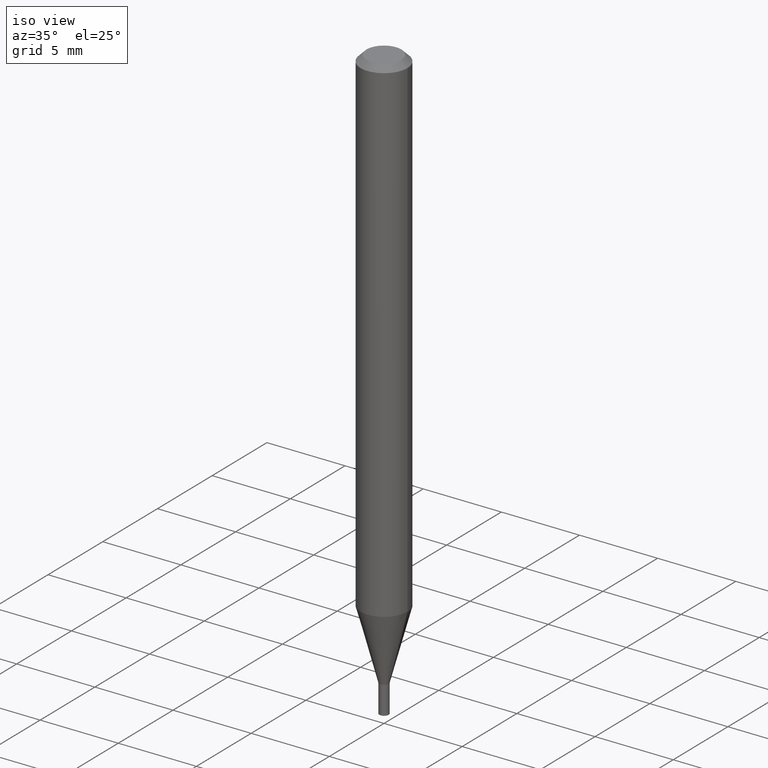
[diagram: clean part render]
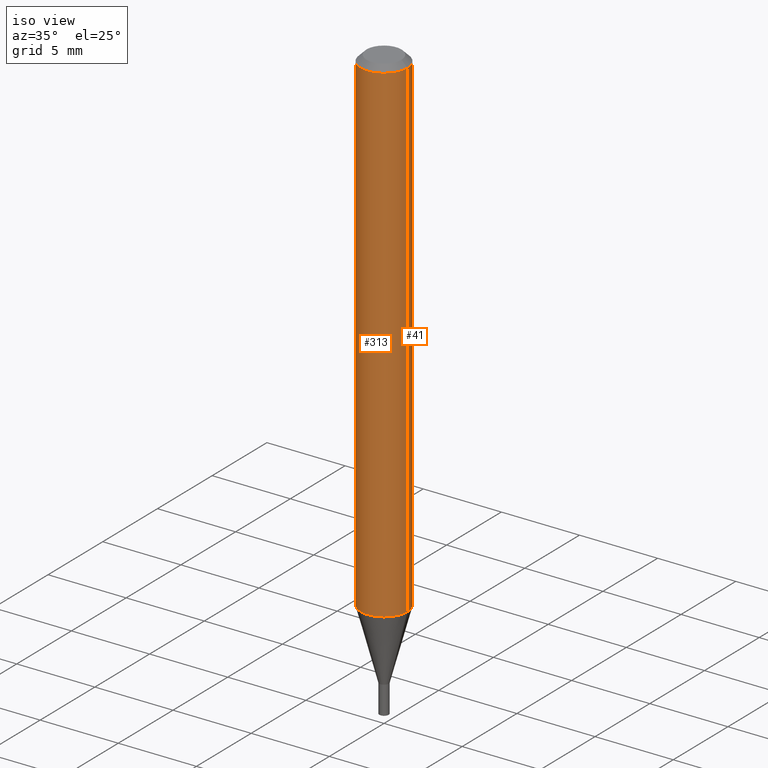
[diagram: same view with one multi-face feature highlighted, each face labeled with its STEP entity id]
A machine part, iso view. The highlighted faces form ONE feature: a constant-radius fillet chain: 2 tangent blend faces with common blend radius 1.4999 mm. The faces share edges in the B-rep.
Their STEP definitions:
[1] entity #41 (Cylinder):
#1 = DIRECTION ( 'NONE',  ( -2.445468806185136877E-29, 3.491481338843145188E-15, 1.000000000000000000 ) ) ;
#19 = DIRECTION ( 'NONE',  ( -2.445468806185136877E-29, 3.491481338843145188E-15, 1.000000000000000000 ) ) ;
#41 = ADVANCED_FACE ( 'NONE', ( #323 ), #452, .T. ) ;
#49 = CARTESIAN_POINT ( 'NONE',  ( -0.05904999999999999832, 4.195754854663391478E-16, -2.904631170795521892E-30 ) ) ;
#55 = CARTESIAN_POINT ( 'NONE',  ( 0.05904999999999999832, -4.123439461173740327E-16, 2.879382386107500220E-30 ) ) ;
#73 = EDGE_CURVE ( 'NONE', #176, #307, #445, .T. ) ;
#98 = LINE ( 'NONE', #55, #165 ) ;
#117 = VERTEX_POINT ( 'NONE', #207 ) ;
#121 = ORIENTED_EDGE ( 'NONE', *, *, #374, .F. ) ;
#122 = ORIENTED_EDGE ( 'NONE', *, *, #211, .T. ) ;
#141 = ORIENTED_EDGE ( 'NONE', *, *, #73, .T. ) ;
#150 = CARTESIAN_POINT ( 'NONE',  ( 0.000000000000000000, 0.000000000000000000, 0.000000000000000000 ) ) ;
#165 = VECTOR ( 'NONE', #19, 39.37007874015748143 ) ;
#168 = EDGE_CURVE ( 'NONE', #176, #187, #98, .T. ) ;
#175 = CARTESIAN_POINT ( 'NONE',  ( 0.05904999999999999832, -4.786334200759217729E-15, -1.252760599342370940 ) ) ;
#176 = VERTEX_POINT ( 'NONE', #175 ) ;
#185 = CIRCLE ( 'NONE', #335, 0.05904999999999999832 ) ;
#187 = VERTEX_POINT ( 'NONE', #311 ) ;
#207 = CARTESIAN_POINT ( 'NONE',  ( -0.05904999999999999832, -1.793605751895906043E-15, -0.01499999999999999944 ) ) ;
#211 = EDGE_CURVE ( 'NONE', #307, #117, #364, .T. ) ;
#216 = CARTESIAN_POINT ( 'NONE',  ( 3.063586967309564449E-29, -4.373990254641843598E-15, -1.252760599342370940 ) ) ;
#254 = ORIENTED_EDGE ( 'NONE', *, *, #168, .F. ) ;
#277 = AXIS2_PLACEMENT_3D ( 'NONE', #150, #428, #397 ) ;
#307 = VERTEX_POINT ( 'NONE', #372 ) ;
#311 = CARTESIAN_POINT ( 'NONE',  ( 0.05904999999999999832, -4.647161662000212105E-16, -0.01499999999999999944 ) ) ;
#323 = FACE_OUTER_BOUND ( 'NONE', #365, .T. ) ;
#330 = VECTOR ( 'NONE', #1, 39.37007874015748143 ) ;
#335 = AXIS2_PLACEMENT_3D ( 'NONE', #396, #449, #386 ) ;
#351 = DIRECTION ( 'NONE',  ( -2.445468806185136597E-29, 3.491481338843145583E-15, 1.000000000000000000 ) ) ;
#364 = LINE ( 'NONE', #49, #330 ) ;
#365 = EDGE_LOOP ( 'NONE', ( #141, #122, #121, #254 ) ) ;
#367 = DIRECTION ( 'NONE',  ( 1.000000000000000000, -6.982962677686273021E-15, 0.000000000000000000 ) ) ;
#372 = CARTESIAN_POINT ( 'NONE',  ( -0.05904999999999999832, -3.954414769175504894E-15, -1.252760599342370940 ) ) ;
#374 = EDGE_CURVE ( 'NONE', #187, #117, #185, .T. ) ;
#386 = DIRECTION ( 'NONE',  ( 1.000000000000000000, -6.982962677686266711E-15, 0.000000000000000000 ) ) ;
#396 = CARTESIAN_POINT ( 'NONE',  ( 3.668203209277705088E-31, -5.237222008264718399E-17, -0.01499999999999999944 ) ) ;
#397 = DIRECTION ( 'NONE',  ( 1.000000000000000000, -6.982962677686266711E-15, 4.876176775795936353E-29 ) ) ;
#428 = DIRECTION ( 'NONE',  ( -2.445468806185136597E-29, 3.491481338843145583E-15, 1.000000000000000000 ) ) ;
#445 = CIRCLE ( 'NONE', #464, 0.05904999999999999832 ) ;
#449 = DIRECTION ( 'NONE',  ( -2.445468806185136597E-29, 3.491481338843145583E-15, 1.000000000000000000 ) ) ;
#452 = CYLINDRICAL_SURFACE ( 'NONE', #277, 0.05904999999999999832 ) ;
#464 = AXIS2_PLACEMENT_3D ( 'NONE', #216, #351, #367 ) ;
[2] entity #313 (Cylinder):
#1 = DIRECTION ( 'NONE',  ( -2.445468806185136877E-29, 3.491481338843145188E-15, 1.000000000000000000 ) ) ;
#19 = DIRECTION ( 'NONE',  ( -2.445468806185136877E-29, 3.491481338843145188E-15, 1.000000000000000000 ) ) ;
#34 = CIRCLE ( 'NONE', #304, 0.05904999999999999832 ) ;
#49 = CARTESIAN_POINT ( 'NONE',  ( -0.05904999999999999832, 4.195754854663391478E-16, -2.904631170795521892E-30 ) ) ;
#55 = CARTESIAN_POINT ( 'NONE',  ( 0.05904999999999999832, -4.123439461173740327E-16, 2.879382386107500220E-30 ) ) ;
#82 = AXIS2_PLACEMENT_3D ( 'NONE', #270, #411, #97 ) ;
#84 = DIRECTION ( 'NONE',  ( -2.445468806185136597E-29, 3.491481338843145583E-15, 1.000000000000000000 ) ) ;
#93 = ORIENTED_EDGE ( 'NONE', *, *, #324, .T. ) ;
#97 = DIRECTION ( 'NONE',  ( 1.000000000000000000, -6.982962677686266711E-15, 0.000000000000000000 ) ) ;
#98 = LINE ( 'NONE', #55, #165 ) ;
#117 = VERTEX_POINT ( 'NONE', #207 ) ;
#123 = FACE_OUTER_BOUND ( 'NONE', #399, .T. ) ;
#128 = DIRECTION ( 'NONE',  ( 1.000000000000000000, -6.982962677686266711E-15, 4.876176775795936353E-29 ) ) ;
#165 = VECTOR ( 'NONE', #19, 39.37007874015748143 ) ;
#168 = EDGE_CURVE ( 'NONE', #176, #187, #98, .T. ) ;
#175 = CARTESIAN_POINT ( 'NONE',  ( 0.05904999999999999832, -4.786334200759217729E-15, -1.252760599342370940 ) ) ;
#176 = VERTEX_POINT ( 'NONE', #175 ) ;
#187 = VERTEX_POINT ( 'NONE', #311 ) ;
#197 = CYLINDRICAL_SURFACE ( 'NONE', #212, 0.05904999999999999832 ) ;
#204 = CIRCLE ( 'NONE', #82, 0.05904999999999999832 ) ;
#207 = CARTESIAN_POINT ( 'NONE',  ( -0.05904999999999999832, -1.793605751895906043E-15, -0.01499999999999999944 ) ) ;
#211 = EDGE_CURVE ( 'NONE', #307, #117, #364, .T. ) ;
#212 = AXIS2_PLACEMENT_3D ( 'NONE', #336, #84, #128 ) ;
#219 = EDGE_CURVE ( 'NONE', #117, #187, #204, .T. ) ;
#251 = ORIENTED_EDGE ( 'NONE', *, *, #211, .F. ) ;
#270 = CARTESIAN_POINT ( 'NONE',  ( 3.668203209277705088E-31, -5.237222008264718399E-17, -0.01499999999999999944 ) ) ;
#295 = DIRECTION ( 'NONE',  ( 1.000000000000000000, -6.982962677686273021E-15, 0.000000000000000000 ) ) ;
#304 = AXIS2_PLACEMENT_3D ( 'NONE', #331, #466, #295 ) ;
#307 = VERTEX_POINT ( 'NONE', #372 ) ;
#311 = CARTESIAN_POINT ( 'NONE',  ( 0.05904999999999999832, -4.647161662000212105E-16, -0.01499999999999999944 ) ) ;
#313 = ADVANCED_FACE ( 'NONE', ( #123 ), #197, .T. ) ;
#324 = EDGE_CURVE ( 'NONE', #307, #176, #34, .T. ) ;
#329 = ORIENTED_EDGE ( 'NONE', *, *, #168, .T. ) ;
#330 = VECTOR ( 'NONE', #1, 39.37007874015748143 ) ;
#331 = CARTESIAN_POINT ( 'NONE',  ( 3.063586967309564449E-29, -4.373990254641843598E-15, -1.252760599342370940 ) ) ;
#336 = CARTESIAN_POINT ( 'NONE',  ( 0.000000000000000000, 0.000000000000000000, 0.000000000000000000 ) ) ;
#339 = ORIENTED_EDGE ( 'NONE', *, *, #219, .F. ) ;
#364 = LINE ( 'NONE', #49, #330 ) ;
#372 = CARTESIAN_POINT ( 'NONE',  ( -0.05904999999999999832, -3.954414769175504894E-15, -1.252760599342370940 ) ) ;
#399 = EDGE_LOOP ( 'NONE', ( #251, #93, #329, #339 ) ) ;
#411 = DIRECTION ( 'NONE',  ( -2.445468806185136597E-29, 3.491481338843145583E-15, 1.000000000000000000 ) ) ;
#466 = DIRECTION ( 'NONE',  ( -2.445468806185136597E-29, 3.491481338843145583E-15, 1.000000000000000000 ) ) ;